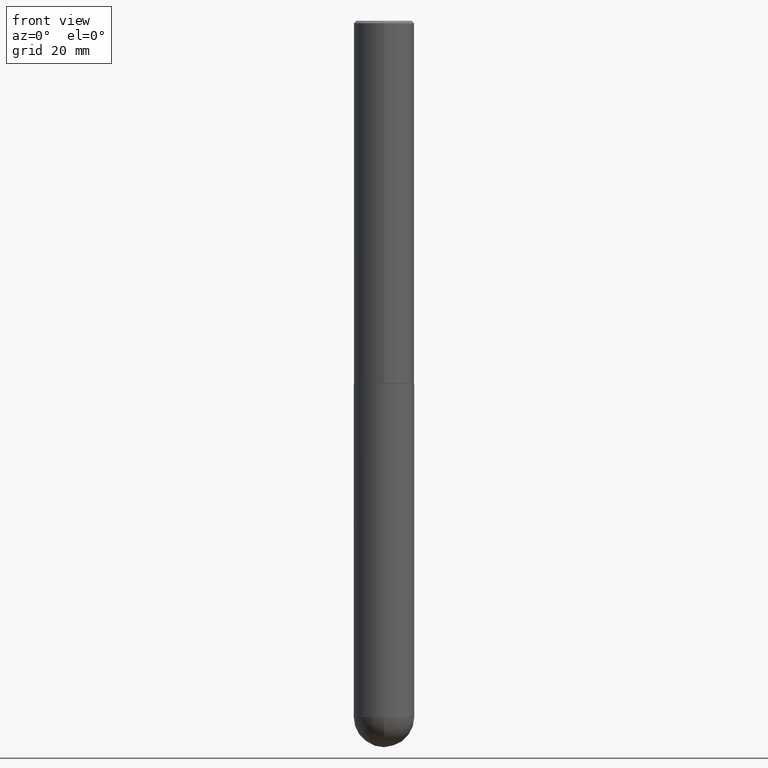
[diagram: clean part render]
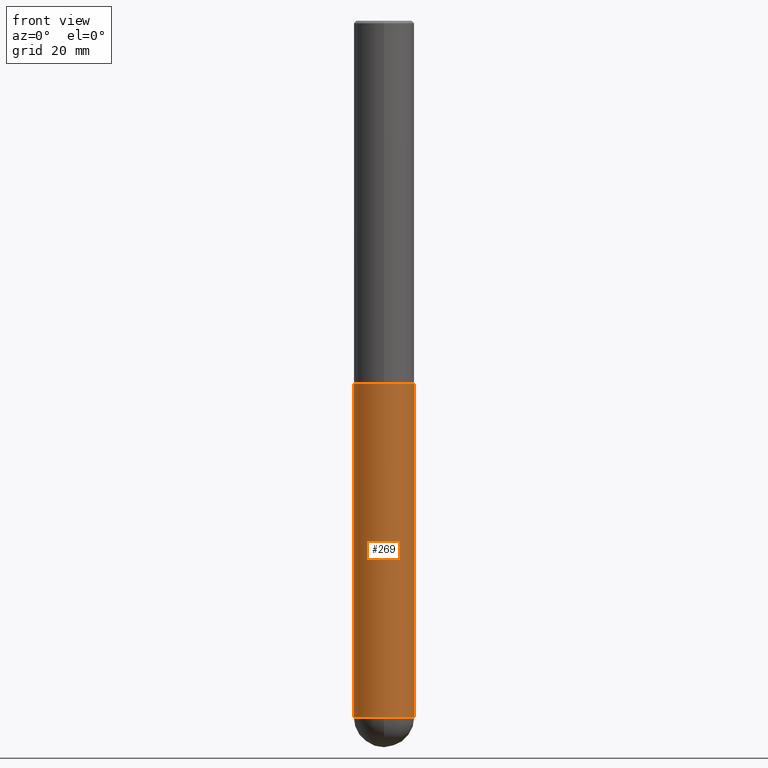
[diagram: same view with one face highlighted and labeled with its STEP entity id]
A machine part, front view. The second image highlights one B-rep face of the part: STEP entity #269.
In plain terms, the highlighted cylindrical surface (edge-blend (fillet) strip) has radius 6.35 mm, axis along (-0, 0, 1).
Its self-contained STEP definition (entity closure, byte-faithful):
#2 = CARTESIAN_POINT ( 'NONE',  ( 0.2500000000000000000, -1.702097152686033033E-14, -5.750000000000000888 ) ) ;
#8 = DIRECTION ( 'NONE',  ( -2.445468806185136597E-29, 3.491481338843145583E-15, 1.000000000000000000 ) ) ;
#12 = ORIENTED_EDGE ( 'NONE', *, *, #332, .T. ) ;
#13 = CARTESIAN_POINT ( 'NONE',  ( 0.000000000000000000, 0.000000000000000000, 0.000000000000000000 ) ) ;
#17 = CARTESIAN_POINT ( 'NONE',  ( 0.2500000000000000000, -1.222018468595100303E-14, -3.000000000000000444 ) ) ;
#20 = CARTESIAN_POINT ( 'NONE',  ( -0.2500000000000000000, -1.349887401803851318E-14, -3.000000000000000444 ) ) ;
#39 = CARTESIAN_POINT ( 'NONE',  ( -0.2500000000000000000, -1.349887401803851318E-14, -5.750000000000000888 ) ) ;
#45 = VERTEX_POINT ( 'NONE', #20 ) ;
#52 = VECTOR ( 'NONE', #342, 39.37007874015748143 ) ;
#54 = ORIENTED_EDGE ( 'NONE', *, *, #368, .F. ) ;
#82 = CARTESIAN_POINT ( 'NONE',  ( -0.2500000000000000000, 1.776356839400250465E-15, -1.229733772563726445E-29 ) ) ;
#86 = LINE ( 'NONE', #82, #52 ) ;
#91 = EDGE_CURVE ( 'NONE', #268, #306, #258, .T. ) ;
#95 = CIRCLE ( 'NONE', #251, 0.2500000000000000000 ) ;
#110 = EDGE_CURVE ( 'NONE', #306, #207, #249, .T. ) ;
#115 = EDGE_CURVE ( 'NONE', #351, #45, #86, .T. ) ;
#141 = CARTESIAN_POINT ( 'NONE',  ( 7.336406418555409790E-29, -1.047444401652943635E-14, -3.000000000000000444 ) ) ;
#153 = CIRCLE ( 'NONE', #180, 0.2500000000000000000 ) ;
#174 = CARTESIAN_POINT ( 'NONE',  ( 1.406144563556453767E-28, -2.007601769834809252E-14, -5.750000000000000888 ) ) ;
#176 = ORIENTED_EDGE ( 'NONE', *, *, #110, .T. ) ;
#180 = AXIS2_PLACEMENT_3D ( 'NONE', #141, #8, #317 ) ;
#184 = FACE_OUTER_BOUND ( 'NONE', #301, .T. ) ;
#190 = DIRECTION ( 'NONE',  ( -2.445468806185136597E-29, 3.491481338843145583E-15, 1.000000000000000000 ) ) ;
#207 = VERTEX_POINT ( 'NONE', #17 ) ;
#218 = CARTESIAN_POINT ( 'NONE',  ( 1.406144563556453767E-28, -2.007601769834809252E-14, -5.750000000000000888 ) ) ;
#227 = DIRECTION ( 'NONE',  ( -2.445468806185136597E-29, 3.491481338843145583E-15, 1.000000000000000000 ) ) ;
#235 = ORIENTED_EDGE ( 'NONE', *, *, #115, .F. ) ;
#242 = CARTESIAN_POINT ( 'NONE',  ( -1.776356839400113597E-15, -0.2500000000000206501, -5.750000000000000000 ) ) ;
#249 = LINE ( 'NONE', #255, #374 ) ;
#251 = AXIS2_PLACEMENT_3D ( 'NONE', #174, #227, #356 ) ;
#255 = CARTESIAN_POINT ( 'NONE',  ( 0.2500000000000000000, -1.745740669421566678E-15, 1.219044193948983948E-29 ) ) ;
#258 = CIRCLE ( 'NONE', #283, 0.2500000000000000000 ) ;
#260 = DIRECTION ( 'NONE',  ( 1.000000000000000000, -6.982962677686266711E-15, 4.876176775795935793E-29 ) ) ;
#268 = VERTEX_POINT ( 'NONE', #242 ) ;
#269 = ADVANCED_FACE ( 'NONE', ( #184 ), #277, .T. ) ;
#277 = CYLINDRICAL_SURFACE ( 'NONE', #298, 0.2500000000000000000 ) ;
#283 = AXIS2_PLACEMENT_3D ( 'NONE', #218, #190, #311 ) ;
#298 = AXIS2_PLACEMENT_3D ( 'NONE', #13, #320, #260 ) ;
#301 = EDGE_LOOP ( 'NONE', ( #235, #12, #336, #176, #54 ) ) ;
#306 = VERTEX_POINT ( 'NONE', #2 ) ;
#311 = DIRECTION ( 'NONE',  ( 1.000000000000000000, -6.982962677686262766E-15, 0.000000000000000000 ) ) ;
#317 = DIRECTION ( 'NONE',  ( 1.000000000000000000, -6.982962677686262766E-15, 0.000000000000000000 ) ) ;
#320 = DIRECTION ( 'NONE',  ( -2.445468806185136597E-29, 3.491481338843145583E-15, 1.000000000000000000 ) ) ;
#332 = EDGE_CURVE ( 'NONE', #351, #268, #95, .T. ) ;
#336 = ORIENTED_EDGE ( 'NONE', *, *, #91, .T. ) ;
#342 = DIRECTION ( 'NONE',  ( -2.445468806185136877E-29, 3.491481338843145188E-15, 1.000000000000000000 ) ) ;
#351 = VERTEX_POINT ( 'NONE', #39 ) ;
#356 = DIRECTION ( 'NONE',  ( 1.000000000000000000, -6.982962677686262766E-15, 0.000000000000000000 ) ) ;
#368 = EDGE_CURVE ( 'NONE', #45, #207, #153, .T. ) ;
#374 = VECTOR ( 'NONE', #403, 39.37007874015748143 ) ;
#403 = DIRECTION ( 'NONE',  ( -2.445468806185136877E-29, 3.491481338843145188E-15, 1.000000000000000000 ) ) ;